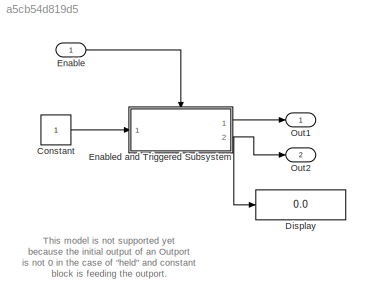
MODEL slx_a5cb54d819d5
KIND model
CONFIG AbsTol = auto
CONFIG FixedStep = 0.2
CONFIG MaxStep = auto
CONFIG MinStep = auto
CONFIG RelTol = 1e-3
CONFIG SampleTimeConstraint = Unconstrained
CONFIG Solver = FixedStepDiscrete
CONFIG SolverMode = Auto
CONFIG SolverName = FixedStepDiscrete
CONFIG StartTime = 0.0
CONFIG StopTime = 19.8
WORKSPACE source: MAT-file member
WORKSPACE already_pp = 1
BLOCK [Constant] Constant
BLOCK [Display] Display
  Decimation = 1
  Ports = [1]
BLOCK [Inport] Enable
  IconDisplay = Port number
  OutDataTypeStr = boolean
  PortDimensions = 1
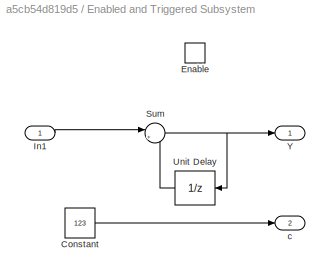
BLOCK [SubSystem] Enabled and Triggered Subsystem
  MinAlgLoopOccurrences = on
  Ports = [1, 2, 1]
  RequestExecContextInheritance = off
  TreatAsAtomicUnit = on
  Variant = off
BLOCK [Constant] Enabled and Triggered Subsystem/Constant
  Value = 123
BLOCK [EnablePort] Enabled and Triggered Subsystem/Enable
  Ports = []
  StatesWhenEnabling = reset
BLOCK [Inport] Enabled and Triggered Subsystem/In1
  IconDisplay = Port number
  OutDataTypeStr = double
  PortDimensions = 1
BLOCK [Sum] Enabled and Triggered Subsystem/Sum
  IconShape = round
  InputSameDT = off
  Inputs = |++
  OutDataTypeStr = Inherit: Inherit via internal rule
  Ports = [2, 1]
  SaturateOnIntegerOverflow = off
BLOCK [UnitDelay] Enabled and Triggered Subsystem/Unit Delay
  InputProcessing = Elements as channels (sample based)
  SampleTime = -1
BLOCK [Outport] Enabled and Triggered Subsystem/Y
  IconDisplay = Port number
  InitialOutput = 10
BLOCK [Outport] Enabled and Triggered Subsystem/c
  IconDisplay = Port number
  Port = 2
BLOCK [Outport] Out1
  IconDisplay = Port number
BLOCK [Outport] Out2
  IconDisplay = Port number
  Port = 2
ANNOTATION (root): This model is not supported yet because the initial output of an Outport is not 0 in the case of "held" and constant block is feeding the outport.
LINE Constant:1 -> Enabled and Triggered Subsystem:1
LINE Enable:1 -> Enabled and Triggered Subsystem:enable
LINE Enabled and Triggered Subsystem/Constant:1 -> Enabled and Triggered Subsystem/c:1
LINE Enabled and Triggered Subsystem/In1:1 -> Enabled and Triggered Subsystem/Sum:1
NET Enabled and Triggered Subsystem/Sum:1 -> Enabled and Triggered Subsystem/Unit Delay:1, Enabled and Triggered Subsystem/Y:1
LINE Enabled and Triggered Subsystem/Unit Delay:1 -> Enabled and Triggered Subsystem/Sum:2
LINE Enabled and Triggered Subsystem:1 -> Out1:1
NET Enabled and Triggered Subsystem:2 -> Display:1, Out2:1
note: NET lines group one-source signal fan-out (src -> all destinations, sorted); 1:1 wires keep LINE
